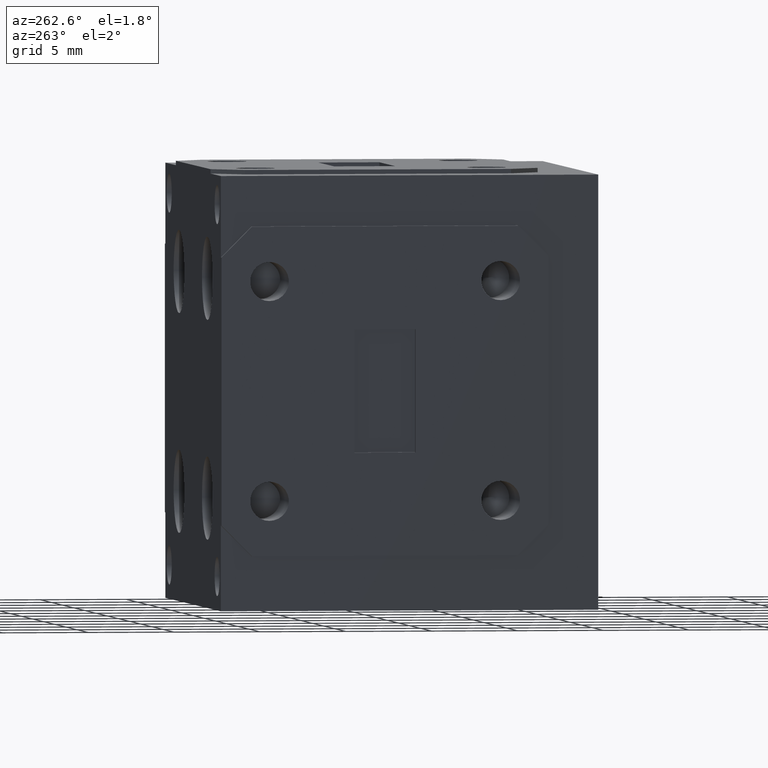
[diagram: clean part render]
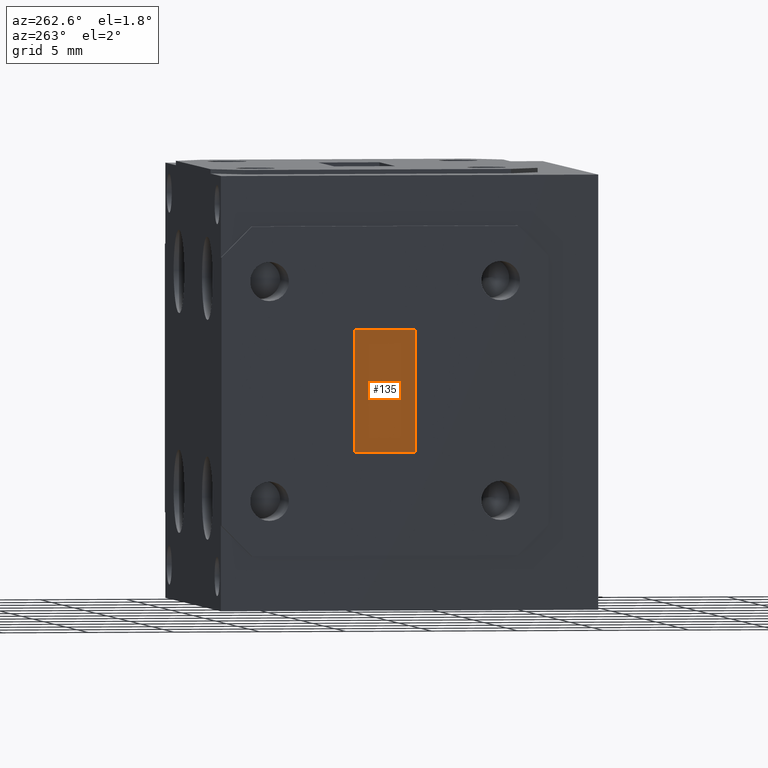
[diagram: same view with one face highlighted and labeled with its STEP entity id]
A machine part, auxiliary view. The second image highlights one B-rep face of the part: STEP entity #135.
In plain terms, the highlighted planar face has unit normal (-1, 0, -0).
Its self-contained STEP definition (entity closure, byte-faithful):
#37 = CARTESIAN_POINT ( 'NONE',  ( -0.4900000000000000466, -0.4450000000000000067, -0.1400000000000000966 ) ) ;
#54 = VECTOR ( 'NONE', #8858, 39.37007874015748143 ) ;
#110 = VECTOR ( 'NONE', #3770, 39.37007874015748143 ) ;
#135 = ADVANCED_FACE ( 'NONE', ( #6402 ), #5554, .T. ) ;
#496 = VERTEX_POINT ( 'NONE', #37 ) ;
#722 = VERTEX_POINT ( 'NONE', #8733 ) ;
#795 = VECTOR ( 'NONE', #9543, 39.37007874015748143 ) ;
#927 = LINE ( 'NONE', #7751, #795 ) ;
#1333 = DIRECTION ( 'NONE',  ( -1.000000000000000000, 7.450599229762820562E-32, -4.104484531280826970E-16 ) ) ;
#1461 = CARTESIAN_POINT ( 'NONE',  ( -0.4900000000000001021, -0.3050000000000000488, 0.1399999999999999301 ) ) ;
#1560 = ORIENTED_EDGE ( 'NONE', *, *, #7790, .F. ) ;
#1579 = VERTEX_POINT ( 'NONE', #6267 ) ;
#1630 = ORIENTED_EDGE ( 'NONE', *, *, #8719, .T. ) ;
#3057 = VECTOR ( 'NONE', #10226, 39.37007874015748143 ) ;
#3224 = AXIS2_PLACEMENT_3D ( 'NONE', #9037, #1333, #10880 ) ;
#3673 = VERTEX_POINT ( 'NONE', #1461 ) ;
#3770 = DIRECTION ( 'NONE',  ( -7.450599229762822751E-32, -1.000000000000000000, 9.466600490908429049E-32 ) ) ;
#3803 = EDGE_CURVE ( 'NONE', #3673, #722, #927, .T. ) ;
#3967 = ORIENTED_EDGE ( 'NONE', *, *, #4613, .T. ) ;
#4399 = LINE ( 'NONE', #9610, #3057 ) ;
#4532 = LINE ( 'NONE', #7145, #54 ) ;
#4613 = EDGE_CURVE ( 'NONE', #1579, #496, #10678, .T. ) ;
#5554 = PLANE ( 'NONE',  #3224 ) ;
#5703 = EDGE_LOOP ( 'NONE', ( #1560, #9395, #1630, #3967 ) ) ;
#6267 = CARTESIAN_POINT ( 'NONE',  ( -0.4900000000000000466, -0.3050000000000000488, -0.1400000000000000966 ) ) ;
#6402 = FACE_OUTER_BOUND ( 'NONE', #5703, .T. ) ;
#7145 = CARTESIAN_POINT ( 'NONE',  ( -0.4900000000000001021, -0.3050000000000000488, 0.1399999999999999301 ) ) ;
#7751 = CARTESIAN_POINT ( 'NONE',  ( -0.4900000000000001021, -0.3050000000000000488, 0.1399999999999999301 ) ) ;
#7790 = EDGE_CURVE ( 'NONE', #722, #496, #4399, .T. ) ;
#8719 = EDGE_CURVE ( 'NONE', #3673, #1579, #4532, .T. ) ;
#8733 = CARTESIAN_POINT ( 'NONE',  ( -0.4900000000000001021, -0.4450000000000000067, 0.1399999999999999301 ) ) ;
#8858 = DIRECTION ( 'NONE',  ( 4.104484531280826970E-16, -9.466600490908434523E-32, -1.000000000000000000 ) ) ;
#9037 = CARTESIAN_POINT ( 'NONE',  ( -0.4900000000000001021, -0.3050000000000000488, 0.1399999999999999301 ) ) ;
#9395 = ORIENTED_EDGE ( 'NONE', *, *, #3803, .F. ) ;
#9543 = DIRECTION ( 'NONE',  ( -7.450599229762822751E-32, -1.000000000000000000, 9.466600490908429049E-32 ) ) ;
#9610 = CARTESIAN_POINT ( 'NONE',  ( -0.4900000000000001021, -0.4450000000000000067, 0.1399999999999999301 ) ) ;
#9732 = CARTESIAN_POINT ( 'NONE',  ( -0.4900000000000000466, -0.3050000000000000488, -0.1400000000000000966 ) ) ;
#10226 = DIRECTION ( 'NONE',  ( 4.104484531280826970E-16, -9.466600490908434523E-32, -1.000000000000000000 ) ) ;
#10678 = LINE ( 'NONE', #9732, #110 ) ;
#10880 = DIRECTION ( 'NONE',  ( 4.104484531280826970E-16, -9.466600490908434523E-32, -1.000000000000000000 ) ) ;